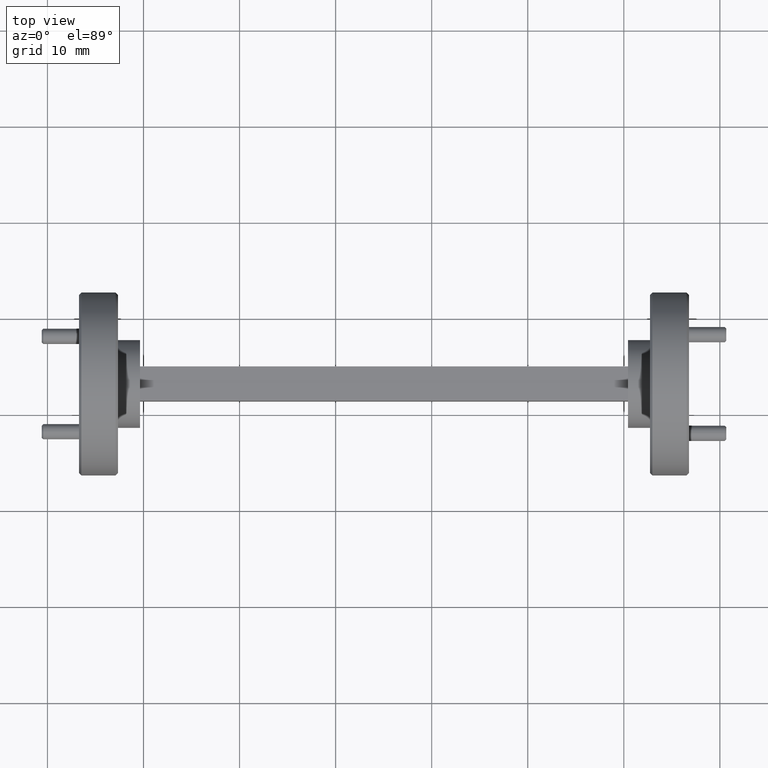
[diagram: clean part render]
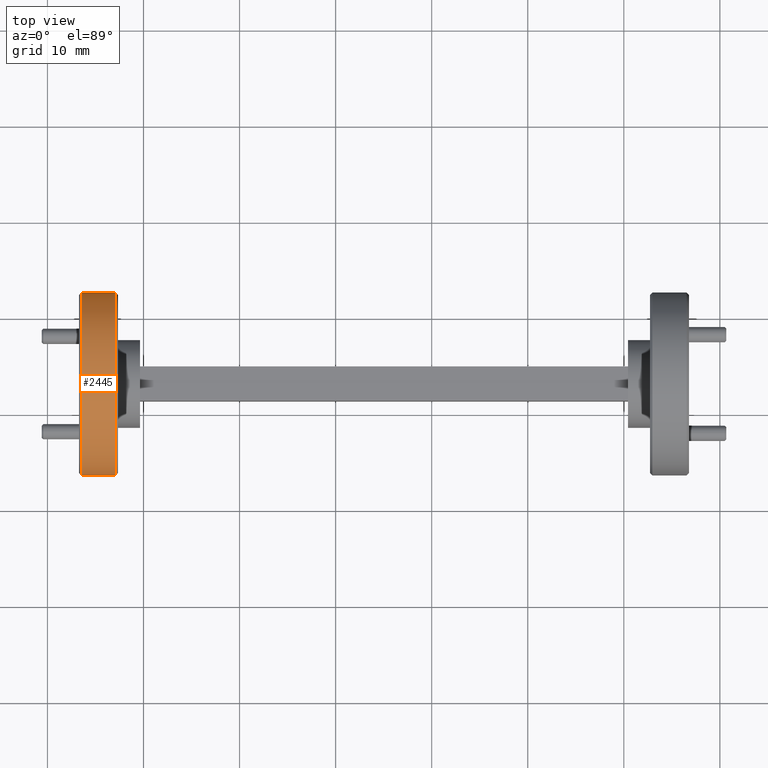
[diagram: same view with one face highlighted and labeled with its STEP entity id]
A machine part, top view. The second image highlights one B-rep face of the part: STEP entity #2445.
In plain terms, the highlighted cylindrical surface (partial cylindrical patch) has radius 9.525 mm, axis along (1, 0, -0).
Its self-contained STEP definition (entity closure, byte-faithful):
#5 = DIRECTION ( 'NONE',  ( 0.000000000000000000, -1.000000000000000000, 0.000000000000000000 ) ) ;
#323 = CARTESIAN_POINT ( 'NONE',  ( -0.6580541153284433786, 1.715015889200941057, 2.884611598569149393 ) ) ;
#352 = EDGE_CURVE ( 'NONE', #4029, #1686, #4560, .T. ) ;
#379 = CARTESIAN_POINT ( 'NONE',  ( -0.6480541153282572964, 2.465015889200941057, 2.884611598569149393 ) ) ;
#616 = CARTESIAN_POINT ( 'NONE',  ( -0.5080541153282565059, 2.465015889200941057, 2.884611598569149393 ) ) ;
#624 = EDGE_CURVE ( 'NONE', #3272, #4029, #2091, .T. ) ;
#676 = CARTESIAN_POINT ( 'NONE',  ( -0.5080541153282565059, 2.090015889200941057, 2.884611598569149393 ) ) ;
#948 = VECTOR ( 'NONE', #6802, 39.37007874015748143 ) ;
#1428 = CARTESIAN_POINT ( 'NONE',  ( -0.6580541153284433786, 2.090015889200941057, 2.884611598569149393 ) ) ;
#1632 = CARTESIAN_POINT ( 'NONE',  ( -0.6480541153282572964, 2.090015889200941057, 2.884611598569149393 ) ) ;
#1686 = VERTEX_POINT ( 'NONE', #616 ) ;
#2027 = DIRECTION ( 'NONE',  ( 1.000000000000000000, 1.224646799147353454E-16, -0.000000000000000000 ) ) ;
#2091 = LINE ( 'NONE', #323, #2956 ) ;
#2261 = DIRECTION ( 'NONE',  ( -1.000000000000000000, -1.224646799147351482E-16, 0.000000000000000000 ) ) ;
#2445 = ADVANCED_FACE ( 'NONE', ( #4930 ), #4895, .T. ) ;
#2801 = EDGE_CURVE ( 'NONE', #6657, #3272, #6964, .T. ) ;
#2956 = VECTOR ( 'NONE', #7230, 39.37007874015748143 ) ;
#3190 = AXIS2_PLACEMENT_3D ( 'NONE', #676, #2261, #6975 ) ;
#3272 = VERTEX_POINT ( 'NONE', #4559 ) ;
#3307 = LINE ( 'NONE', #3845, #948 ) ;
#3431 = EDGE_CURVE ( 'NONE', #6657, #1686, #3307, .T. ) ;
#3717 = DIRECTION ( 'NONE',  ( 0.000000000000000000, 1.000000000000000000, 0.000000000000000000 ) ) ;
#3845 = CARTESIAN_POINT ( 'NONE',  ( -0.6580541153284433786, 2.465015889200941057, 2.884611598569149393 ) ) ;
#4029 = VERTEX_POINT ( 'NONE', #7429 ) ;
#4101 = ORIENTED_EDGE ( 'NONE', *, *, #624, .T. ) ;
#4526 = ORIENTED_EDGE ( 'NONE', *, *, #3431, .F. ) ;
#4559 = CARTESIAN_POINT ( 'NONE',  ( -0.6480541153282572964, 1.715015889200941057, 2.884611598569149393 ) ) ;
#4560 = CIRCLE ( 'NONE', #3190, 0.3749999999999999445 ) ;
#4895 = CYLINDRICAL_SURFACE ( 'NONE', #6637, 0.3749999999999999445 ) ;
#4930 = FACE_OUTER_BOUND ( 'NONE', #6646, .T. ) ;
#5190 = DIRECTION ( 'NONE',  ( 1.000000000000000000, 1.224646799147353454E-16, -0.000000000000000000 ) ) ;
#5783 = ORIENTED_EDGE ( 'NONE', *, *, #2801, .T. ) ;
#6607 = AXIS2_PLACEMENT_3D ( 'NONE', #1632, #5190, #5 ) ;
#6637 = AXIS2_PLACEMENT_3D ( 'NONE', #1428, #2027, #3717 ) ;
#6646 = EDGE_LOOP ( 'NONE', ( #5783, #4101, #6688, #4526 ) ) ;
#6657 = VERTEX_POINT ( 'NONE', #379 ) ;
#6688 = ORIENTED_EDGE ( 'NONE', *, *, #352, .T. ) ;
#6802 = DIRECTION ( 'NONE',  ( 1.000000000000000000, 1.224646799147353454E-16, -0.000000000000000000 ) ) ;
#6964 = CIRCLE ( 'NONE', #6607, 0.3749999999999999445 ) ;
#6975 = DIRECTION ( 'NONE',  ( -1.821231995776175725E-16, 1.000000000000000000, 0.000000000000000000 ) ) ;
#7230 = DIRECTION ( 'NONE',  ( 1.000000000000000000, 1.224646799147353454E-16, -0.000000000000000000 ) ) ;
#7429 = CARTESIAN_POINT ( 'NONE',  ( -0.5080541153282563949, 1.715015889200941057, 2.884611598569149393 ) ) ;